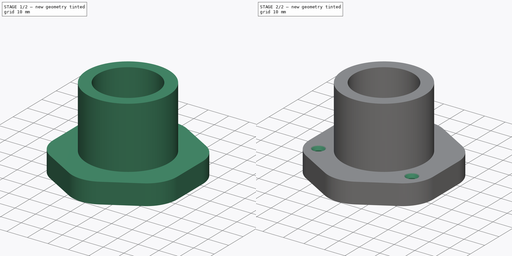
[diagram: build sequence overview — one tinted view per stage of 2, left to right]
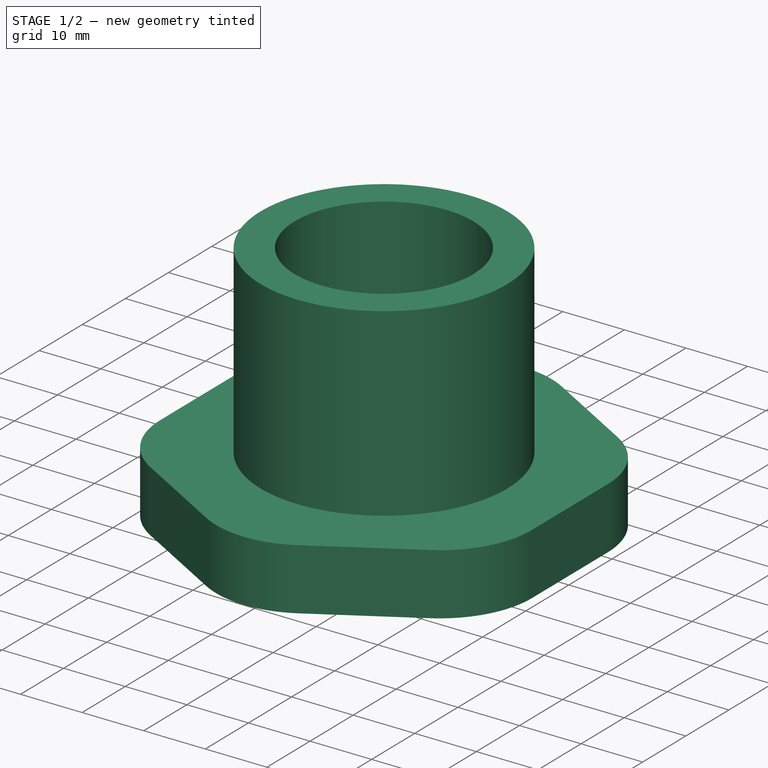
[diagram: stage 1 of 2 — iso view after this stage's code; geometry added in this stage tinted green]
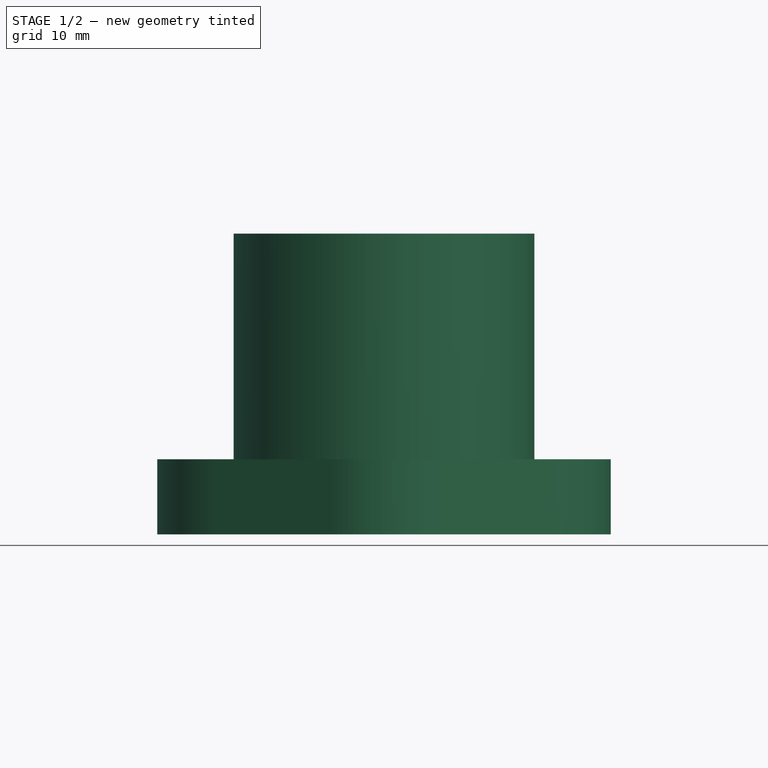
[diagram: stage 1 of 2 — front view after this stage's code; geometry added in this stage tinted green]
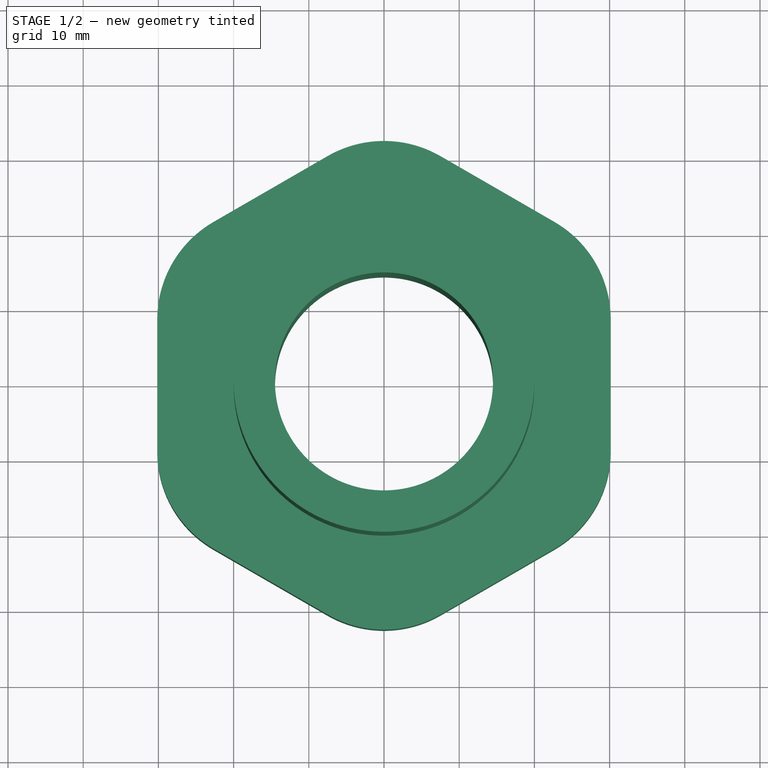
[diagram: stage 1 of 2 — top view after this stage's code; geometry added in this stage tinted green]
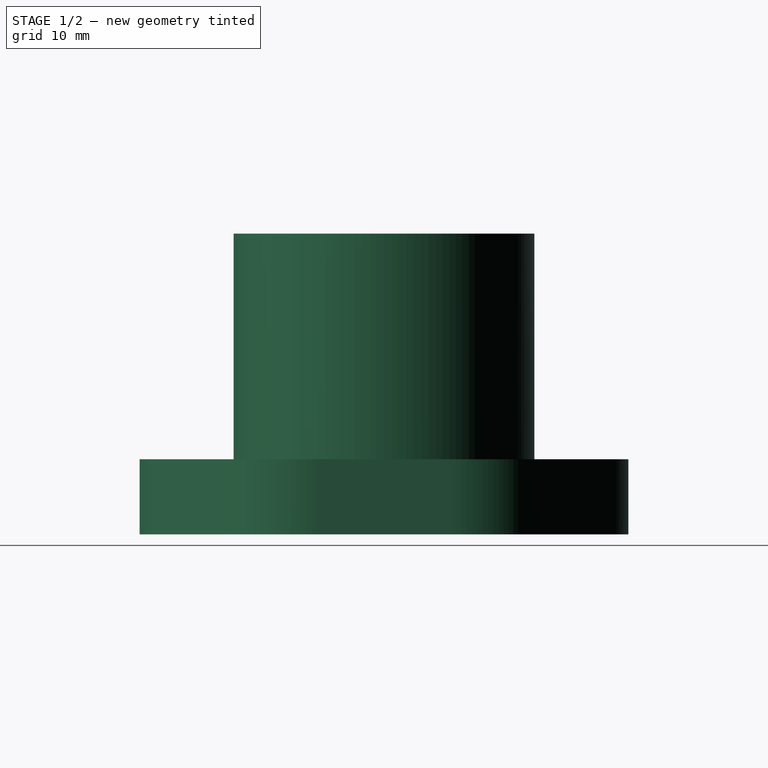
[diagram: stage 1 of 2 — right view after this stage's code; geometry added in this stage tinted green]
FCSTD DOCUMENT  (FreeCAD 2021.911R24301 +3846 (Git))
Label: top mount 2
License: All rights reserved
LicenseURL: http://en.wikipedia.org/wiki/All_rights_reserved
objects: PartDesign::SubShapeBinder×2, Sketcher::SketchExport×2, PartDesign::Pad×2, PartDesign::Body×1, Sketcher::SketchObject×1, PartDesign::Hole×1
note: 15 computed .brp shape members not serialized (recipe doc carries the construction recipe); baked Part::Feature solids carry a one-line shape summary decoded from their .brp

FEATURE [PartDesign::SubShapeBinder] Binder  label="Binder(Sketch)..."
  BindCopyOnChange = 0
  BindMode = 0
  ClaimChildren = false
  Context = -> Body [Binder.]
  FillStyle = 0
  Fuse = false
  MakeFace = true
  PartialLoad = false
  Relative = true
  Support = -> [Sketch[Edge16,Edge17,Edge15]]
  _Version = 7
FEATURE [PartDesign::SubShapeBinder] Binder001  label="Binder001(Sketch)..."
  BindCopyOnChange = 0
  BindMode = 0
  ClaimChildren = false
  Context = -> Body [Binder001.]
  FillStyle = 0
  Fuse = false
  MakeFace = true
  PartialLoad = false
  Relative = true
  Support = -> [Sketch[Edge1,Edge2]]
  _Version = 7
FEATURE [PartDesign::Body] Body
  AutoGroupSolids = false
  ExportMode = 0
  Group = -> [Sketch,Export,Pad,Binder,Pad001,Binder001,Export001,Hole]
  Origin = -> Origin
  Tip = -> Hole
  _ExportChildren = -> [Sketch,Pad,Binder,Pad001,Hole]
  _GroupVersion = 1
FEATURE [Sketcher::SketchObject] Sketch
  Exports = -> [Export,Export001]
  FullyConstrained = true
  MapMode = 5
  Support = -> [XY_Plane]
  sketch-geometry (24):
    g0: Circle CenterX=0 CenterY=0 CenterZ=0 NormalX=0 NormalY=0 NormalZ=1 AngleXU=0 Radius=14.5
    g1: Circle CenterX=0 CenterY=0 CenterZ=0 NormalX=0 NormalY=0 NormalZ=1 AngleXU=0 Radius=20
    g2: LineSegment StartX=30.1554 StartY=-8.75 StartZ=0 EndX=30.1554 EndY=8.75 EndZ=0
    g3: LineSegment StartX=22.6554 StartY=21.7404 StartZ=0 EndX=7.5 EndY=30.4904 EndZ=0
    g4: LineSegment StartX=-7.5 StartY=30.4904 StartZ=0 EndX=-22.6554 EndY=21.7404 EndZ=0
    g5: LineSegment StartX=-30.1554 StartY=8.75 StartZ=0 EndX=-30.1554 EndY=-8.75 EndZ=0
    g6: LineSegment StartX=-22.6554 StartY=-21.7404 StartZ=0 EndX=-7.5 EndY=-30.4904 EndZ=0
    g7: LineSegment StartX=7.5 StartY=-30.4904 StartZ=0 EndX=22.6554 EndY=-21.7404 EndZ=0
    g8: Circle [constr] CenterX=0 CenterY=0 CenterZ=0 NormalX=0 NormalY=0 NormalZ=1 AngleXU=0 Radius=32.5
    g9: ArcOfCircle CenterX=2e-16 CenterY=17.5 CenterZ=0 NormalX=0 NormalY=0 NormalZ=1 AngleXU=0 Radius=15 StartAngle=1.0472 EndAngle=2.0944
    g10: ArcOfCircle CenterX=15.1554 CenterY=8.75 CenterZ=0 NormalX=0 NormalY=0 NormalZ=1 AngleXU=0 Radius=15 StartAngle=0 EndAngle=1.0472
    g11: ArcOfCircle CenterX=15.1554 CenterY=-8.75 CenterZ=0 NormalX=0 NormalY=0 NormalZ=1 AngleXU=0 Radius=15 StartAngle=5.23599 EndAngle=6.28319
    g12: ArcOfCircle CenterX=2e-15 CenterY=-17.5 CenterZ=0 NormalX=0 NormalY=0 NormalZ=1 AngleXU=0 Radius=15 StartAngle=4.18879 EndAngle=5.23599
    g13: ArcOfCircle CenterX=-15.1554 CenterY=-8.75 CenterZ=0 NormalX=0 NormalY=0 NormalZ=1 AngleXU=0 Radius=15 StartAngle=3.14159 EndAngle=4.18879
    g14: ArcOfCircle CenterX=-15.1554 CenterY=8.75 CenterZ=0 NormalX=0 NormalY=0 NormalZ=1 AngleXU=0 Radius=15 StartAngle=2.0944 EndAngle=3.14159
    g15: Circle CenterX=0 CenterY=26.25 CenterZ=0 NormalX=0 NormalY=0 NormalZ=1 AngleXU=0 Radius=1.5
    g16: Circle CenterX=22.7332 CenterY=-13.125 CenterZ=0 NormalX=0 NormalY=0 NormalZ=1 AngleXU=0 Radius=1.5
    g17: Circle CenterX=-22.7332 CenterY=-13.125 CenterZ=0 NormalX=0 NormalY=0 NormalZ=1 AngleXU=0 Radius=1.5
    g18: LineSegment [constr] StartX=0 StartY=26.25 StartZ=0 EndX=-22.7332 EndY=-13.125 EndZ=0
    g19: LineSegment [constr] StartX=-22.7332 StartY=-13.125 StartZ=0 EndX=22.7332 EndY=-13.125 EndZ=0
    g20: LineSegment [constr] StartX=22.7332 StartY=-13.125 StartZ=0 EndX=0 EndY=26.25 EndZ=0
    g21: Circle [constr] CenterX=0 CenterY=0 CenterZ=0 NormalX=0 NormalY=0 NormalZ=1 AngleXU=0 Radius=26.25
    g22: LineSegment [constr] StartX=0 StartY=26.25 StartZ=0 EndX=0 EndY=20 EndZ=0
    g23: LineSegment [constr] StartX=0 StartY=26.25 StartZ=0 EndX=0 EndY=32.5 EndZ=0
  constraints (58):
    c: Coincident(g0,g-1)
    c: Diameter(g0) = 29
    c: Coincident(g1,g0)
    c: Diameter(g1) = 40
    c: Equal(g2,g4)
    c: Equal(g2,g5)
    c: Equal(g2,g6)
    c: Coincident(g8,g0)
    c: Tangent(g4,g9) = -1.5708
    c: Tangent(g3,g9) = -1.5708
    c: Tangent(g3,g10) = -1.5708
    c: Tangent(g2,g10) = -1.5708
    c: Tangent(g2,g11) = -1.5708
    c: Tangent(g7,g11) = -1.5708
    c: Tangent(g7,g12) = -1.5708
    c: Tangent(g6,g12) = -1.5708
    c: Tangent(g6,g13) = -1.5708
    c: Tangent(g5,g13) = -1.5708
    c: Tangent(g5,g14) = -1.5708
    c: Tangent(g4,g14) = -1.5708
    c: Parallel(g4,g7)
    c: Parallel(g2,g5)
    c: Parallel(g6,g3)
    c: Equal(g4,g3)
    c: Equal(g2,g7)
    c: Vertical(g2)
    c: Diameter(g10) = 30
    c: Equal(g10,g11)
    c: Equal(g11,g12)
    c: Equal(g12,g13)
    c: Angle(g7) = 0.523599
    c: Angle(g6) = -0.523599
    c: Symmetric(g4,g7,g0)
    c: Tangent(g8,g10)
    c: PointOnObject(g15,g-2)
    c: Coincident(g18,g19)
    c: Coincident(g19,g20)
    c: Coincident(g20,g18)
    c: Equal(g18,g19)
    c: Equal(g18,g20)
    c: PointOnObject(g18,g21)
    c: PointOnObject(g19,g21)
    c: PointOnObject(g20,g21)
    c: Coincident(g20,g15)
    c: Coincident(g17,g18)
    c: Coincident(g16,g19)
    c: Equal(g16,g15)
    c: Equal(g15,g17)
    c: Diameter(g17) = 3
    c: Coincident(g-1,g21)
    c: Diameter(g8) = 65
    c: Coincident(g22,g15)
    c: PointOnObject(g22,g1)
    c: Coincident(g23,g15)
    c: PointOnObject(g23,g8)
    c: Vertical(g23)
    c: Vertical(g22)
    c: Equal(g22,g23)
FEATURE [Sketcher::SketchExport] Export
  Base = -> Sketch
  BaseRefs = -> Sketch [edge10,edge4,edge11,edge3,edge12,edge8,edge13,edge7,edge14,edge6,edge15,edge5,edge1]
  Refs = ;g10.edge10 | ;g4.edge4 | ;g11.edge11 | ;g3.edge3 | ;g12.edge12 | ;g8.edge8 | ;g13.edge13 | ;g7.edge7 | ;g14.edge14 | ;g6.edge6 | ;g15.edge15 | ;g5.edge5 | ;g1.edge1
  SyncPlacement = true
FEATURE [PartDesign::Pad] Pad
  ClaimChildren = false
  Direction = (1,1,1)
  Fit = 0
  FitJoin = 0
  InnerFit = 0
  InnerFitJoin = 0
  InnerTaperAngle = 0
  InnerTaperAngleRev = 0
  Length = 10
  Length2 = 100
  Linearize = true
  NewSolid = false
  Profile = -> Export
  Refine = true
  Suppress = false
  Type = 0
  _ProfileBasedVersion = 1
FEATURE [PartDesign::Pad] Pad001
  BaseFeature = -> Pad
  ClaimChildren = false
  Direction = (1,1,1)
  Fit = 0
  FitJoin = 0
  InnerFit = 0
  InnerFitJoin = 0
  InnerTaperAngle = 0
  InnerTaperAngleRev = 0
  Length = 40
  Length2 = 100
  Linearize = true
  NewSolid = false
  Profile = -> Binder001
  Refine = true
  Suppress = false
  Type = 0
  _ProfileBasedVersion = 1
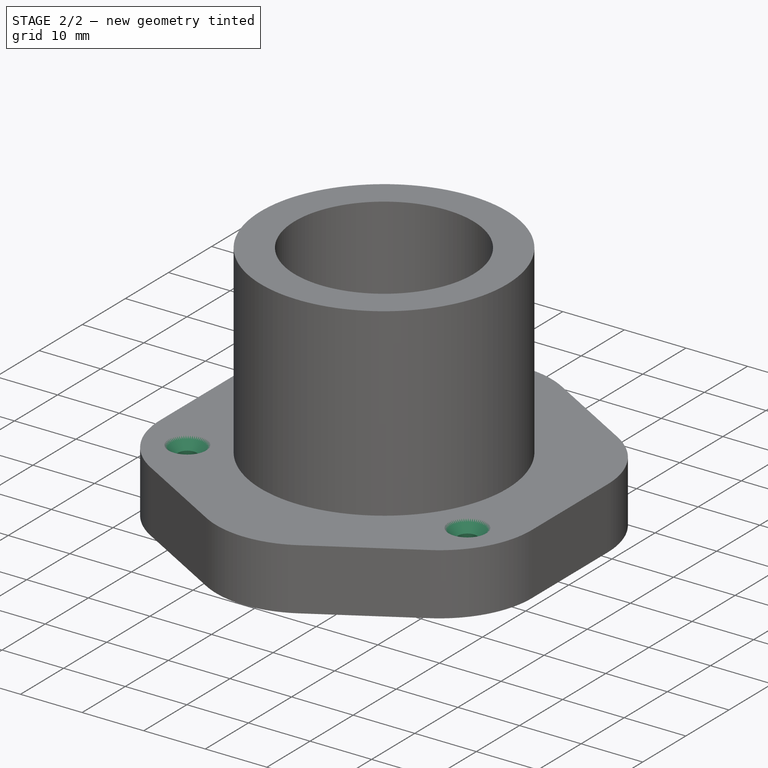
[diagram: stage 2 of 2 — iso view after this stage's code; geometry added in this stage tinted green]
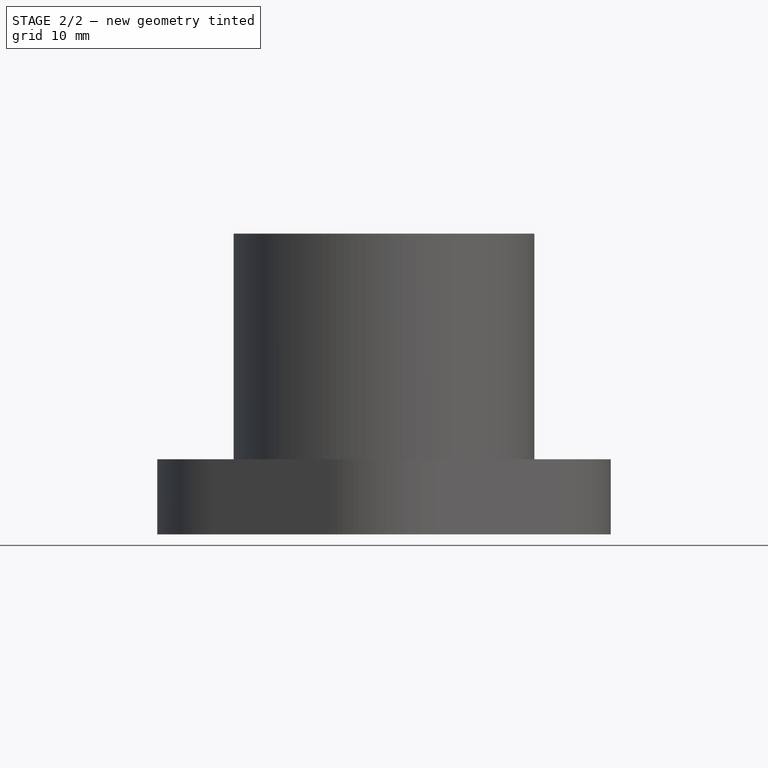
[diagram: stage 2 of 2 — front view after this stage's code; geometry added in this stage tinted green]
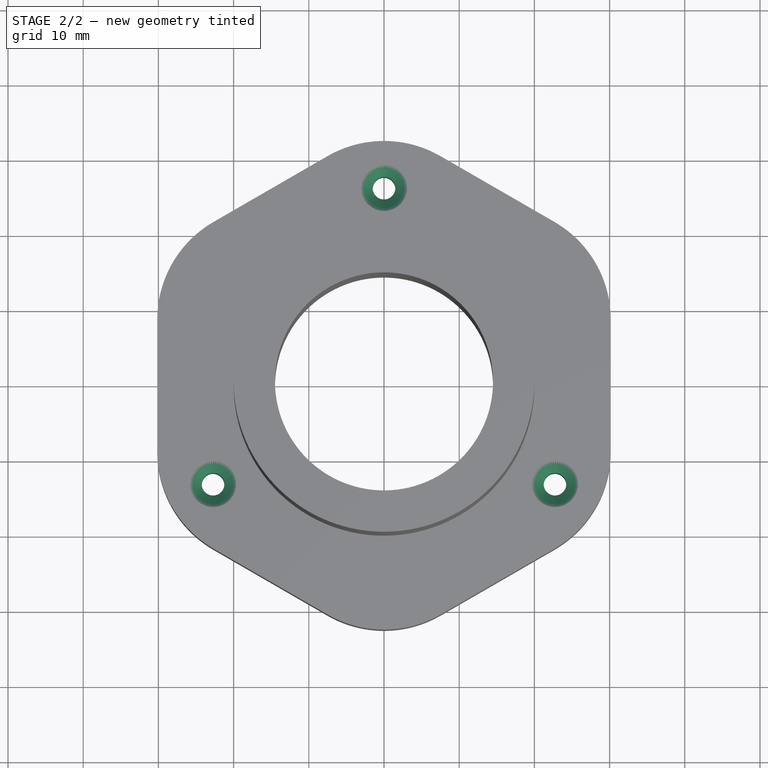
[diagram: stage 2 of 2 — top view after this stage's code; geometry added in this stage tinted green]
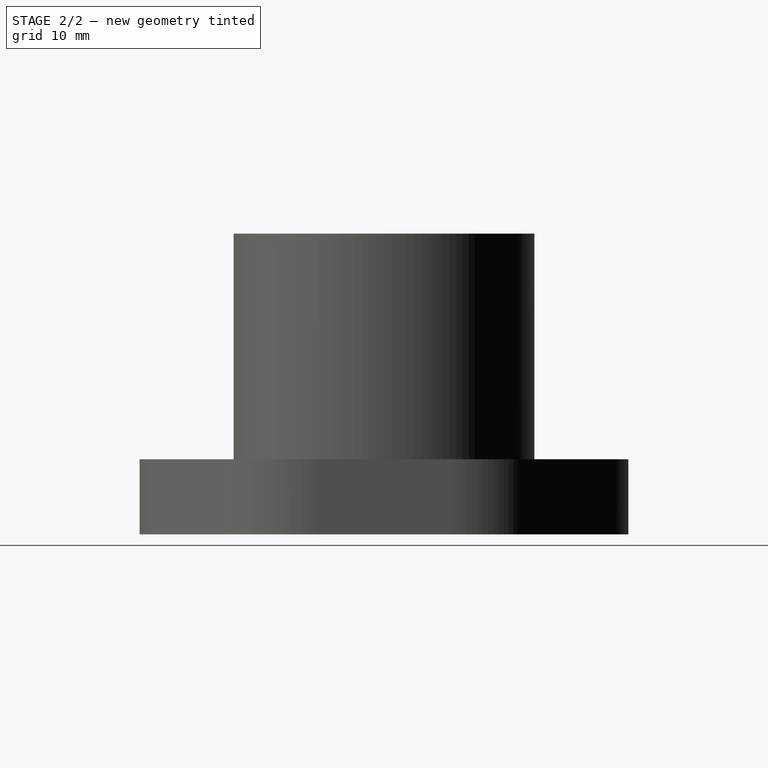
[diagram: stage 2 of 2 — right view after this stage's code; geometry added in this stage tinted green]
FEATURE [Sketcher::SketchExport] Export001
  Base = -> Sketch
  BaseRefs = -> Sketch [edge16,edge18,edge17]
  Placement = pos=(0,0,10) rot=(0,0,1;0rad)
  Refs = ;g16.edge16 | ;g18.edge18 | ;g17.edge17
  SyncPlacement = true
FEATURE [PartDesign::Hole] Hole
  BaseFeature = -> Pad001
  ClaimChildren = false
  CustomThreadClearance = 0
  Depth = 25
  DepthType = 0
  Diameter = 3
  DrillForDepth = false
  DrillPoint = 1
  DrillPointAngle = 118
  Fit = 0
  FitJoin = 0
  HoleCutCountersinkAngle = 90
  HoleCutCustomValues = false
  HoleCutDepth = 0
  HoleCutDiameter = 6.1
  HoleCutType = 2
  InnerFit = 0
  InnerFitJoin = 0
  ModelThread = false
  NewSolid = false
  Profile = -> Export001
  Refine = true
  Suppress = false
  Tapered = false
  TaperedAngle = 90
  ThreadClass = 0
  ThreadDepth = 23.5
  ThreadDepthType = 0
  ThreadDirection = 0
  ThreadFit = 0
  ThreadSize = 0
  ThreadType = 0
  Threaded = false
  UseCustomThreadClearance = false
  _ProfileBasedVersion = 1
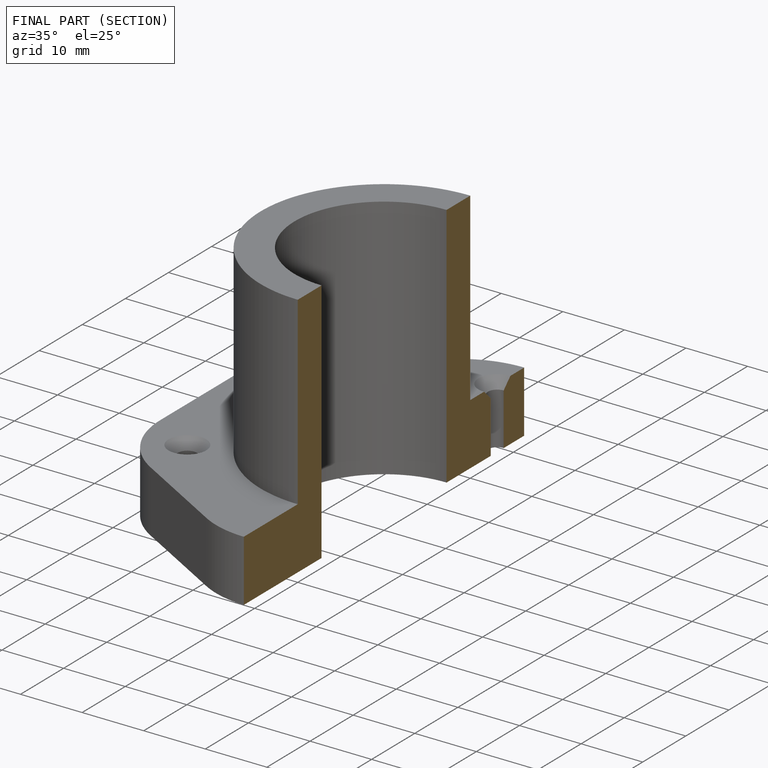
[diagram: finished part — half-section view (interior)]
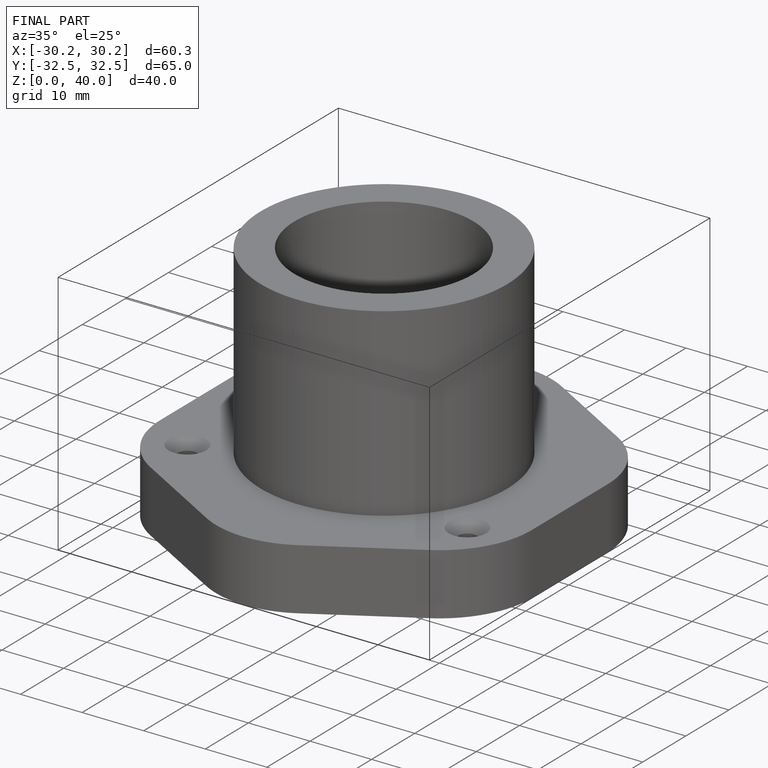
[diagram: finished part — iso view with bounding-box wireframe]
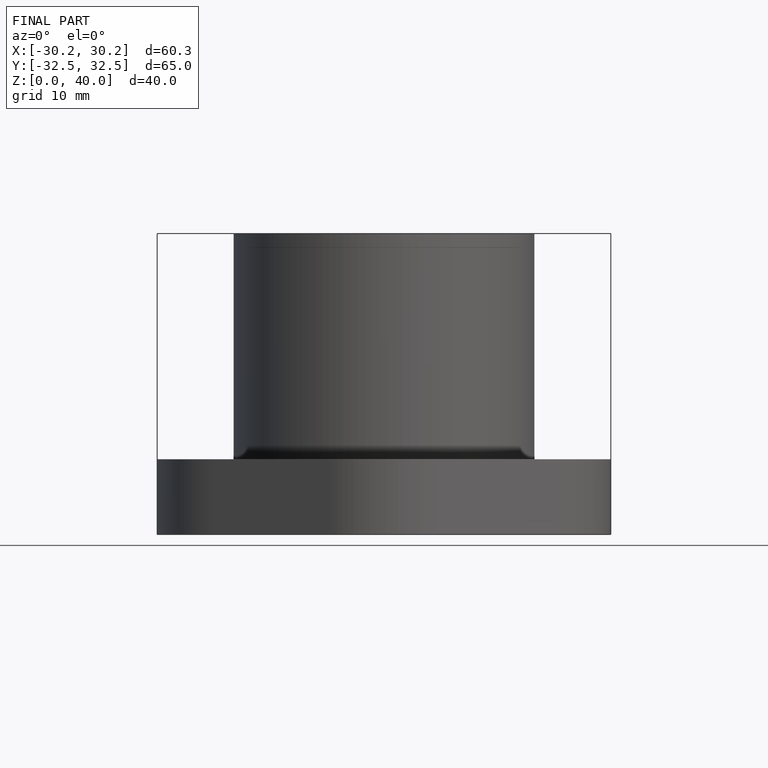
[diagram: finished part — front view with bounding-box wireframe]
